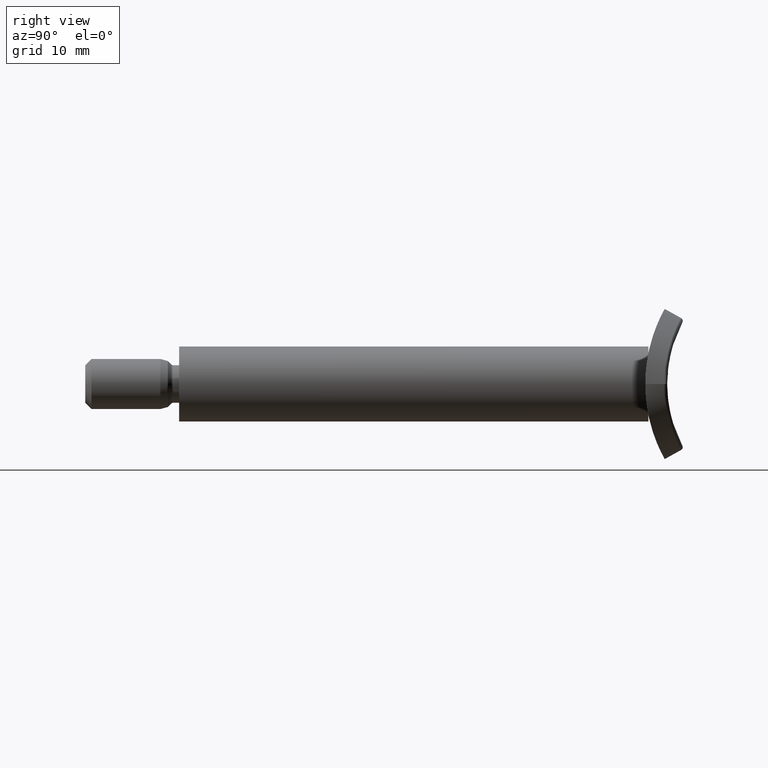
[diagram: clean part render]
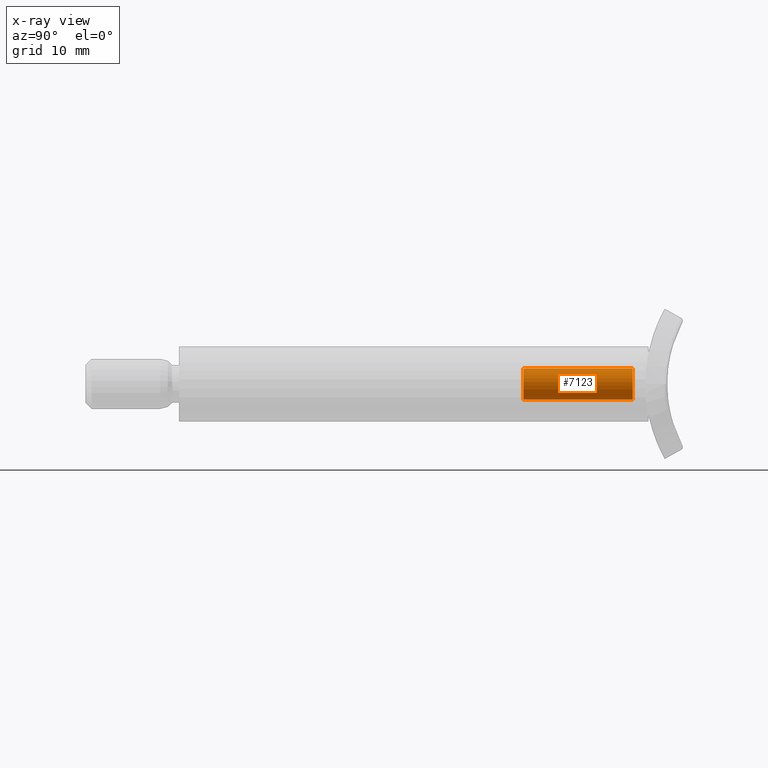
[diagram: x-ray — body ghosted, one internal face saturated and labeled with its STEP entity id]
A machine part, right view, then the same camera in x-ray: the body is ghosted and one INTERNAL B-rep face — a face not visible from any outside direction — is saturated and labeled: STEP entity #7123.
In plain terms, the highlighted cylindrical surface (bore or boss wall) has radius 2.5 mm, axis along (0, 1, 0).
Its self-contained STEP definition (entity closure, byte-faithful):
#682 = CARTESIAN_POINT ( 'NONE',  ( 0.0000000000000000000, 74.99999999999998600, 0.0000000000000000000 ) ) ;
#720 = VERTEX_POINT ( 'NONE', #11394 ) ;
#1041 = DIRECTION ( 'NONE',  ( 0.0000000000000000000, 0.0000000000000000000, 1.000000000000000000 ) ) ;
#1680 = DIRECTION ( 'NONE',  ( 0.0000000000000000000, 0.0000000000000000000, 1.000000000000000000 ) ) ;
#2009 = CIRCLE ( 'NONE', #12503, 2.499999999999997300 ) ;
#2243 = CARTESIAN_POINT ( 'NONE',  ( 0.0000000000000000000, 55.00000000000000000, 2.499999999999994700 ) ) ;
#2324 = AXIS2_PLACEMENT_3D ( 'NONE', #7433, #2939, #1680 ) ;
#2939 = DIRECTION ( 'NONE',  ( -0.0000000000000000000, 1.000000000000000000, -0.0000000000000000000 ) ) ;
#3163 = DIRECTION ( 'NONE',  ( -0.0000000000000000000, 1.000000000000000000, -0.0000000000000000000 ) ) ;
#4726 = EDGE_LOOP ( 'NONE', ( #9409 ) ) ;
#4793 = ORIENTED_EDGE ( 'NONE', *, *, #8883, .T. ) ;
#6323 = CIRCLE ( 'NONE', #2324, 2.499999999999994700 ) ;
#6908 = FACE_OUTER_BOUND ( 'NONE', #4726, .T. ) ;
#7123 = ADVANCED_FACE ( 'NONE', ( #14349, #6908 ), #9620, .F. ) ;
#7433 = CARTESIAN_POINT ( 'NONE',  ( 0.0000000000000000000, 55.00000000000000000, 0.0000000000000000000 ) ) ;
#7616 = AXIS2_PLACEMENT_3D ( 'NONE', #682, #3163, #12450 ) ;
#7980 = DIRECTION ( 'NONE',  ( -0.0000000000000000000, 1.000000000000000000, -0.0000000000000000000 ) ) ;
#8883 = EDGE_CURVE ( 'NONE', #720, #720, #2009, .T. ) ;
#9409 = ORIENTED_EDGE ( 'NONE', *, *, #10010, .F. ) ;
#9620 = CYLINDRICAL_SURFACE ( 'NONE', #7616, 2.499999999999992900 ) ;
#10010 = EDGE_CURVE ( 'NONE', #13812, #13812, #6323, .T. ) ;
#10264 = CARTESIAN_POINT ( 'NONE',  ( 0.0000000000000000000, 72.49999999999998600, 0.0000000000000000000 ) ) ;
#11394 = CARTESIAN_POINT ( 'NONE',  ( 0.0000000000000000000, 72.49999999999998600, 2.499999999999997300 ) ) ;
#12450 = DIRECTION ( 'NONE',  ( 0.0000000000000000000, 0.0000000000000000000, 1.000000000000000000 ) ) ;
#12503 = AXIS2_PLACEMENT_3D ( 'NONE', #10264, #7980, #1041 ) ;
#12723 = EDGE_LOOP ( 'NONE', ( #4793 ) ) ;
#13812 = VERTEX_POINT ( 'NONE', #2243 ) ;
#14349 = FACE_OUTER_BOUND ( 'NONE', #12723, .T. ) ;